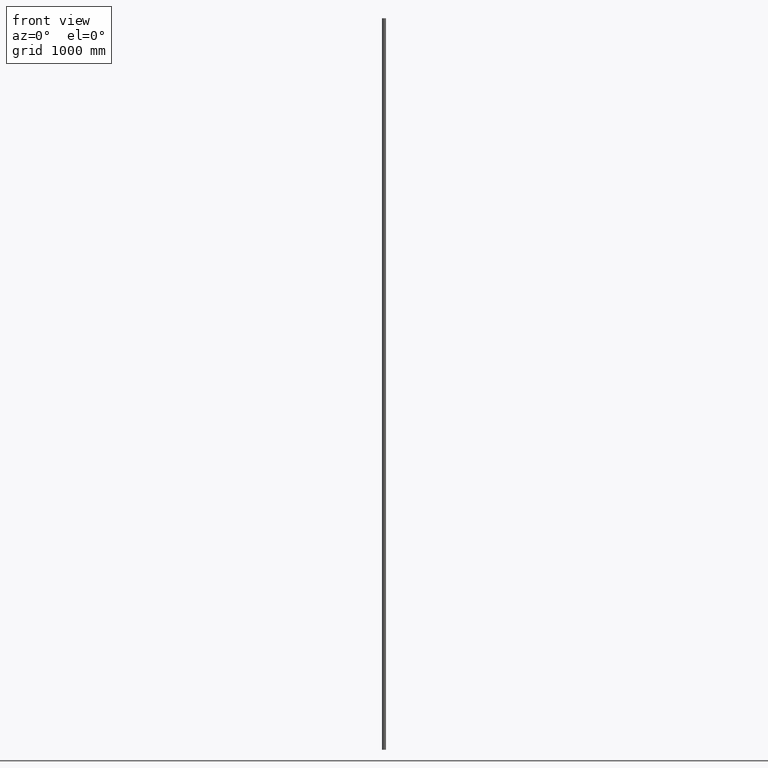
[diagram: clean part render]
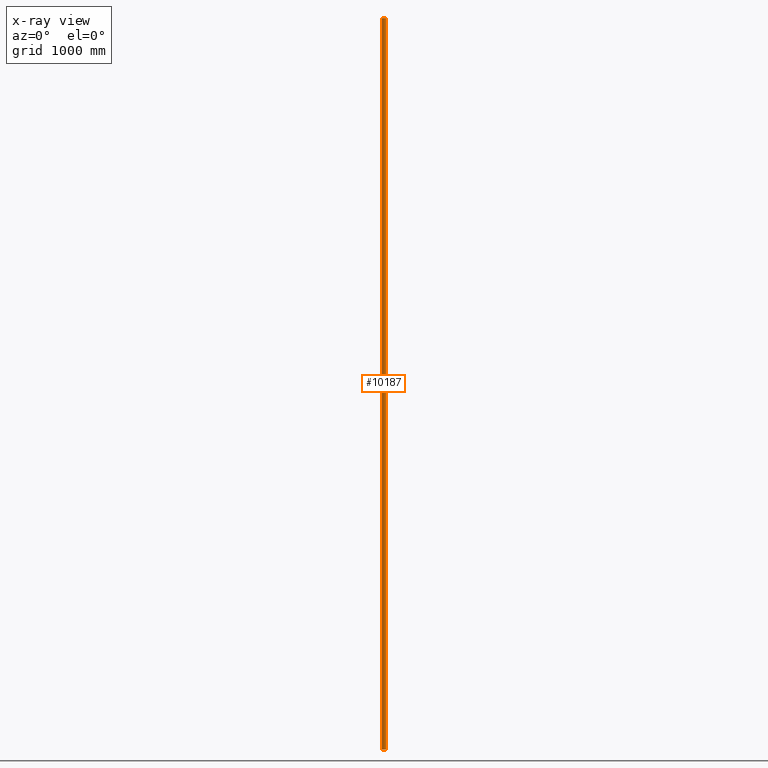
[diagram: x-ray — body ghosted, one internal face saturated and labeled with its STEP entity id]
A machine part, front view, then the same camera in x-ray: the body is ghosted and one INTERNAL B-rep face — a face not visible from any outside direction — is saturated and labeled: STEP entity #10187.
In plain terms, the highlighted cylindrical surface (bore or boss wall) has radius 16.85 mm, axis along (-0, -0, -1).
Its self-contained STEP definition (entity closure, byte-faithful):
#418 = CYLINDRICAL_SURFACE ( 'NONE', #1753, 16.85000000000000142 ) ;
#1137 = DIRECTION ( 'NONE',  ( 1.000000000000000000, 0.000000000000000000, 0.000000000000000000 ) ) ;
#1138 = CIRCLE ( 'NONE', #4301, 16.85000000000000142 ) ;
#1502 = ORIENTED_EDGE ( 'NONE', *, *, #1829, .F. ) ;
#1753 = AXIS2_PLACEMENT_3D ( 'NONE', #6459, #6416, #4516 ) ;
#1829 = EDGE_CURVE ( 'NONE', #11936, #11936, #4938, .T. ) ;
#1932 = AXIS2_PLACEMENT_3D ( 'NONE', #7987, #7837, #11679 ) ;
#1995 = DIRECTION ( 'NONE',  ( 0.000000000000000000, 0.000000000000000000, 1.000000000000000000 ) ) ;
#3477 = VERTEX_POINT ( 'NONE', #3942 ) ;
#3899 = CARTESIAN_POINT ( 'NONE',  ( 16.85000000000000142, 0.000000000000000000, 3000.000000000000000 ) ) ;
#3942 = CARTESIAN_POINT ( 'NONE',  ( 16.85000000000000142, 0.000000000000000000, -3000.000000000000000 ) ) ;
#4210 = EDGE_LOOP ( 'NONE', ( #1502 ) ) ;
#4301 = AXIS2_PLACEMENT_3D ( 'NONE', #10563, #1995, #1137 ) ;
#4516 = DIRECTION ( 'NONE',  ( -1.000000000000000000, 0.000000000000000000, 0.000000000000000000 ) ) ;
#4938 = CIRCLE ( 'NONE', #1932, 16.85000000000000142 ) ;
#5562 = ORIENTED_EDGE ( 'NONE', *, *, #10364, .T. ) ;
#6150 = FACE_OUTER_BOUND ( 'NONE', #4210, .T. ) ;
#6416 = DIRECTION ( 'NONE',  ( -0.000000000000000000, -0.000000000000000000, -1.000000000000000000 ) ) ;
#6459 = CARTESIAN_POINT ( 'NONE',  ( 0.000000000000000000, 0.000000000000000000, 3000.000000000000000 ) ) ;
#7027 = FACE_OUTER_BOUND ( 'NONE', #9015, .T. ) ;
#7837 = DIRECTION ( 'NONE',  ( 0.000000000000000000, 0.000000000000000000, 1.000000000000000000 ) ) ;
#7987 = CARTESIAN_POINT ( 'NONE',  ( 0.000000000000000000, 0.000000000000000000, 3000.000000000000000 ) ) ;
#9015 = EDGE_LOOP ( 'NONE', ( #5562 ) ) ;
#10187 = ADVANCED_FACE ( 'NONE', ( #6150, #7027 ), #418, .T. ) ;
#10364 = EDGE_CURVE ( 'NONE', #3477, #3477, #1138, .T. ) ;
#10563 = CARTESIAN_POINT ( 'NONE',  ( 0.000000000000000000, 0.000000000000000000, -3000.000000000000000 ) ) ;
#11679 = DIRECTION ( 'NONE',  ( 1.000000000000000000, 0.000000000000000000, 0.000000000000000000 ) ) ;
#11936 = VERTEX_POINT ( 'NONE', #3899 ) ;